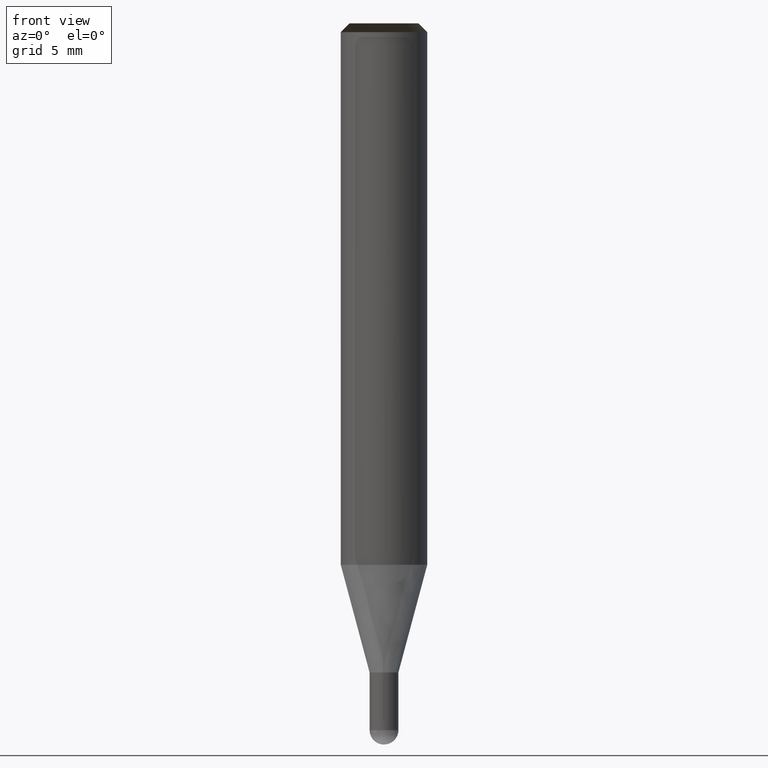
[diagram: clean part render]
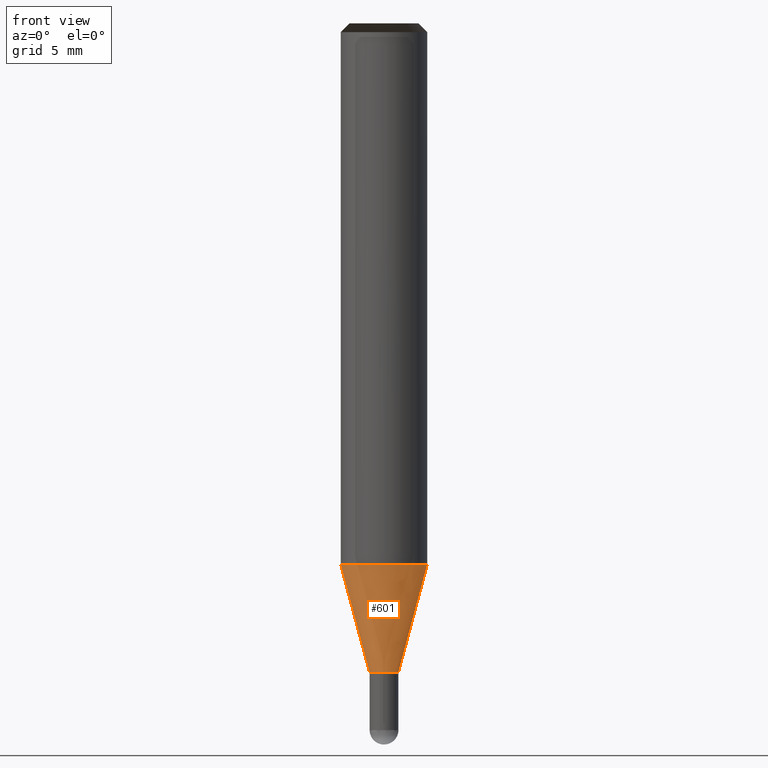
[diagram: same view with one face highlighted and labeled with its STEP entity id]
A machine part, front view. The second image highlights one B-rep face of the part: STEP entity #601.
In plain terms, the highlighted face is a freeform B-spline surface patch.
Its self-contained STEP definition (entity closure, byte-faithful):
#288=CARTESIAN_POINT('',(1.0,0.0,-7.464101615138));
#292=CARTESIAN_POINT('',(-1.0,0.0,-7.464101615138));
#293=CARTESIAN_POINT('',(3.0,0.0,-0.0));
#297=CARTESIAN_POINT('',(-3.0,0.0,-0.0));
#309=CARTESIAN_POINT('',(-1.0,-1.0,-7.464101615138));
#310=CARTESIAN_POINT('',(0.0,-1.0,-7.464101615138));
#311=CARTESIAN_POINT('',(1.0,-1.0,-7.464101615138));
#312=CARTESIAN_POINT('',(-3.0,-3.0,-0.0));
#313=CARTESIAN_POINT('',(0.0,-3.0,-0.0));
#314=CARTESIAN_POINT('',(3.0,-3.0,-0.0));
#582=(
BOUNDED_SURFACE()
B_SPLINE_SURFACE(1,2,(
(#292,#309,#310,#311,#288),
(#297,#312,#313,#314,#293)
), .UNSPECIFIED.,.F.,.F.,.F.)
B_SPLINE_SURFACE_WITH_KNOTS((2,2),(3,2,3),(
0.0,1.0),(
0.0,0.5,1.0), .UNSPECIFIED.)
GEOMETRIC_REPRESENTATION_ITEM()
RATIONAL_B_SPLINE_SURFACE(((1.0,0.707106781187,1.0,0.707106781187,1.0),
(1.0,0.707106781187,1.0,0.707106781187,1.0)
))
REPRESENTATION_ITEM('')
SURFACE()
);
#583=(
BOUNDED_CURVE()
B_SPLINE_CURVE(1,(#297,#292),.UNSPECIFIED.,.F.,.F.)
B_SPLINE_CURVE_WITH_KNOTS((2,2),
(0.0,1.0),.UNSPECIFIED.)
CURVE()
GEOMETRIC_REPRESENTATION_ITEM()
RATIONAL_B_SPLINE_CURVE((1.0,1.0))
REPRESENTATION_ITEM('')
);
#584=(
BOUNDED_CURVE()
B_SPLINE_CURVE(2,(#292,#309,#310,#311,#288),.UNSPECIFIED.,.F.,.F.)
B_SPLINE_CURVE_WITH_KNOTS((3,2,3),
(0.0,0.5,1.0),.UNSPECIFIED.)
CURVE()
GEOMETRIC_REPRESENTATION_ITEM()
RATIONAL_B_SPLINE_CURVE((1.0,0.707106781187,1.0,0.707106781187,1.0))
REPRESENTATION_ITEM('')
);
#585=(
BOUNDED_CURVE()
B_SPLINE_CURVE(1,(#288,#293),.UNSPECIFIED.,.F.,.F.)
B_SPLINE_CURVE_WITH_KNOTS((2,2),
(0.0,1.0),.UNSPECIFIED.)
CURVE()
GEOMETRIC_REPRESENTATION_ITEM()
RATIONAL_B_SPLINE_CURVE((1.0,1.0))
REPRESENTATION_ITEM('')
);
#586=(
BOUNDED_CURVE()
B_SPLINE_CURVE(2,(#293,#314,#313,#312,#297),.UNSPECIFIED.,.F.,.F.)
B_SPLINE_CURVE_WITH_KNOTS((3,2,3),
(0.0,0.5,1.0),.UNSPECIFIED.)
CURVE()
GEOMETRIC_REPRESENTATION_ITEM()
RATIONAL_B_SPLINE_CURVE((1.0,0.707106781187,1.0,0.707106781187,1.0))
REPRESENTATION_ITEM('')
);
#587=VERTEX_POINT('',#288);
#588=VERTEX_POINT('',#292);
#589=VERTEX_POINT('',#293);
#590=VERTEX_POINT('',#297);
#591=EDGE_CURVE('',#590,#588,#583,.T.);
#592=EDGE_CURVE('',#588,#587,#584,.T.);
#593=EDGE_CURVE('',#587,#589,#585,.T.);
#594=EDGE_CURVE('',#589,#590,#586,.T.);
#595=ORIENTED_EDGE('',*,*,#591,.T.);
#596=ORIENTED_EDGE('',*,*,#592,.T.);
#597=ORIENTED_EDGE('',*,*,#593,.T.);
#598=ORIENTED_EDGE('',*,*,#594,.T.);
#599=EDGE_LOOP('',(#595,#596,#597,#598));
#600=FACE_OUTER_BOUND('',#599,.T.);
#601=ADVANCED_FACE('',(#600),#582,.T.);